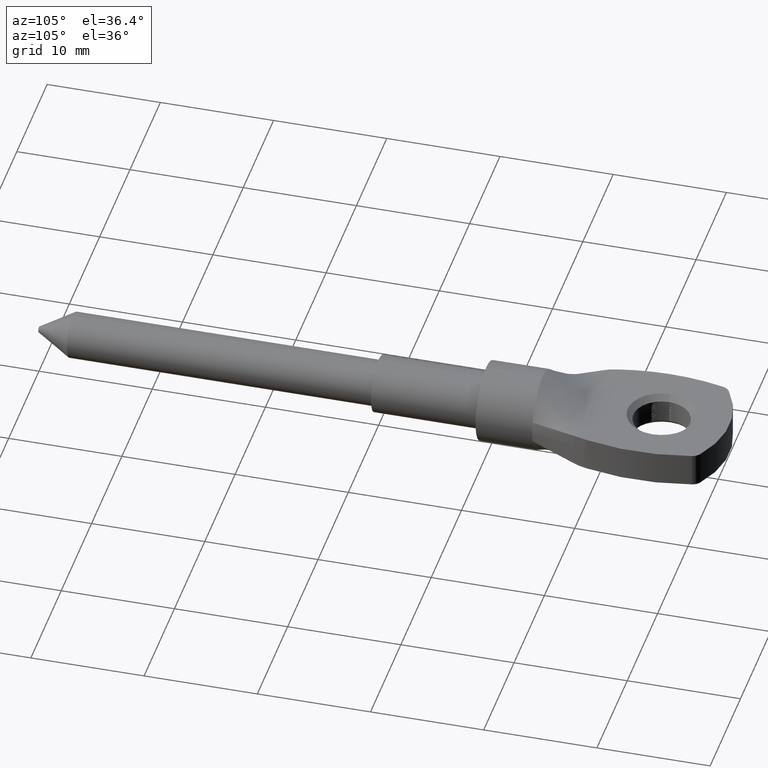
[diagram: clean part render]
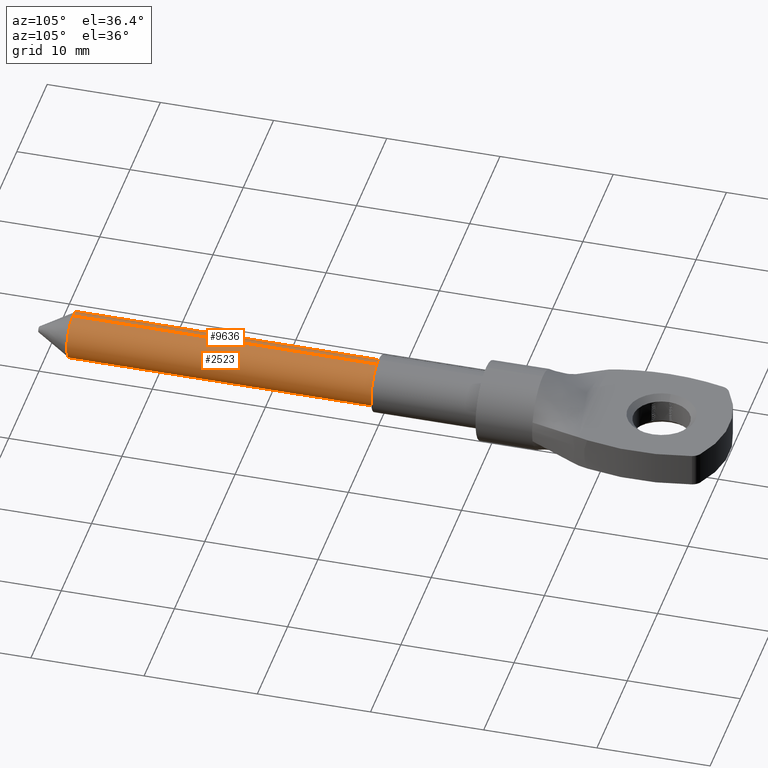
[diagram: same view with one multi-face feature highlighted, each face labeled with its STEP entity id]
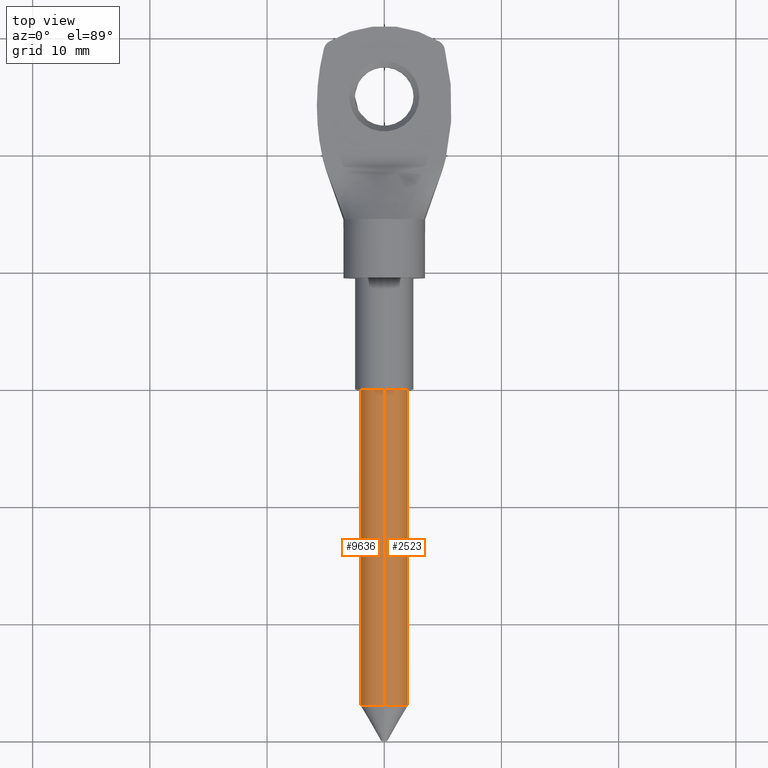
[diagram: same view with one multi-face feature highlighted, each face labeled with its STEP entity id]
A machine part, auxiliary view. The highlighted faces form ONE feature: a constant-radius fillet chain: 2 tangent blend faces with common blend radius 2 mm. The faces share edges in the B-rep.
A second angle (top view) of the same feature is appended — it is thin or edge-on in the first view.
Their STEP definitions:
[1] entity #2523 (Cylinder):
#611 = AXIS2_PLACEMENT_3D ( 'NONE', #10107, #1259, #11242 ) ;
#917 = CARTESIAN_POINT ( 'NONE',  ( 2.449293598294709900E-016, 0.0000000000000000000, 2.000000000000002700 ) ) ;
#1259 = DIRECTION ( 'NONE',  ( -0.0000000000000000000, -1.000000000000000000, -0.0000000000000000000 ) ) ;
#1558 = DIRECTION ( 'NONE',  ( -0.0000000000000000000, -1.000000000000000000, -0.0000000000000000000 ) ) ;
#1817 = DIRECTION ( 'NONE',  ( 0.0000000000000000000, 0.0000000000000000000, 1.000000000000000000 ) ) ;
#1860 = CARTESIAN_POINT ( 'NONE',  ( 0.0000000000000000000, 3.000000000000000900, -2.000000000000004400 ) ) ;
#2258 = EDGE_CURVE ( 'NONE', #9325, #12213, #5602, .T. ) ;
#2523 = ADVANCED_FACE ( 'NONE', ( #8211 ), #5097, .T. ) ;
#2527 = VECTOR ( 'NONE', #8395, 1000.000000000000000 ) ;
#2573 = ORIENTED_EDGE ( 'NONE', *, *, #5316, .F. ) ;
#2853 = EDGE_CURVE ( 'NONE', #12213, #11428, #8957, .T. ) ;
#4359 = ORIENTED_EDGE ( 'NONE', *, *, #2258, .T. ) ;
#4513 = EDGE_LOOP ( 'NONE', ( #4359, #14118, #2573, #7591 ) ) ;
#5097 = CYLINDRICAL_SURFACE ( 'NONE', #611, 2.000000000000002700 ) ;
#5316 = EDGE_CURVE ( 'NONE', #12563, #11428, #10677, .T. ) ;
#5602 = CIRCLE ( 'NONE', #11376, 2.000000000000002700 ) ;
#6030 = EDGE_CURVE ( 'NONE', #9325, #12563, #12445, .T. ) ;
#7591 = ORIENTED_EDGE ( 'NONE', *, *, #6030, .F. ) ;
#8211 = FACE_OUTER_BOUND ( 'NONE', #4513, .T. ) ;
#8395 = DIRECTION ( 'NONE',  ( -0.0000000000000000000, -1.000000000000000000, -0.0000000000000000000 ) ) ;
#8523 = DIRECTION ( 'NONE',  ( -0.0000000000000000000, -1.000000000000000000, -0.0000000000000000000 ) ) ;
#8957 = LINE ( 'NONE', #917, #13148 ) ;
#9116 = CARTESIAN_POINT ( 'NONE',  ( 0.0000000000000000000, 30.00000000000000000, -2.000000000000002700 ) ) ;
#9325 = VERTEX_POINT ( 'NONE', #9116 ) ;
#9624 = DIRECTION ( 'NONE',  ( -0.0000000000000000000, -1.000000000000000000, -0.0000000000000000000 ) ) ;
#10107 = CARTESIAN_POINT ( 'NONE',  ( 0.0000000000000000000, 0.0000000000000000000, 0.0000000000000000000 ) ) ;
#10420 = CARTESIAN_POINT ( 'NONE',  ( 2.449293598294711800E-016, 3.000000000000000900, 2.000000000000004400 ) ) ;
#10677 = CIRCLE ( 'NONE', #14176, 2.000000000000004400 ) ;
#11000 = CARTESIAN_POINT ( 'NONE',  ( 2.449293598294709900E-016, 30.00000000000000000, 2.000000000000002700 ) ) ;
#11242 = DIRECTION ( 'NONE',  ( 0.0000000000000000000, 0.0000000000000000000, -1.000000000000000000 ) ) ;
#11376 = AXIS2_PLACEMENT_3D ( 'NONE', #13968, #8523, #1817 ) ;
#11428 = VERTEX_POINT ( 'NONE', #10420 ) ;
#12213 = VERTEX_POINT ( 'NONE', #11000 ) ;
#12445 = LINE ( 'NONE', #13842, #2527 ) ;
#12563 = VERTEX_POINT ( 'NONE', #1860 ) ;
#12643 = CARTESIAN_POINT ( 'NONE',  ( 0.0000000000000000000, 3.000000000000000900, 0.0000000000000000000 ) ) ;
#12782 = DIRECTION ( 'NONE',  ( 0.0000000000000000000, 0.0000000000000000000, -1.000000000000000000 ) ) ;
#13148 = VECTOR ( 'NONE', #9624, 1000.000000000000000 ) ;
#13842 = CARTESIAN_POINT ( 'NONE',  ( 0.0000000000000000000, 0.0000000000000000000, -2.000000000000002700 ) ) ;
#13968 = CARTESIAN_POINT ( 'NONE',  ( 0.0000000000000000000, 30.00000000000000000, 0.0000000000000000000 ) ) ;
#14118 = ORIENTED_EDGE ( 'NONE', *, *, #2853, .T. ) ;
#14176 = AXIS2_PLACEMENT_3D ( 'NONE', #12643, #1558, #12782 ) ;
[2] entity #9636 (Cylinder):
#43 = CARTESIAN_POINT ( 'NONE',  ( 0.0000000000000000000, 3.000000000000000900, 0.0000000000000000000 ) ) ;
#686 = ORIENTED_EDGE ( 'NONE', *, *, #12735, .T. ) ;
#895 = CIRCLE ( 'NONE', #10957, 2.000000000000002700 ) ;
#917 = CARTESIAN_POINT ( 'NONE',  ( 2.449293598294709900E-016, 0.0000000000000000000, 2.000000000000002700 ) ) ;
#919 = ORIENTED_EDGE ( 'NONE', *, *, #5065, .F. ) ;
#929 = ORIENTED_EDGE ( 'NONE', *, *, #6030, .T. ) ;
#1641 = FACE_OUTER_BOUND ( 'NONE', #12166, .T. ) ;
#1860 = CARTESIAN_POINT ( 'NONE',  ( 0.0000000000000000000, 3.000000000000000900, -2.000000000000004400 ) ) ;
#2484 = AXIS2_PLACEMENT_3D ( 'NONE', #43, #12244, #3267 ) ;
#2527 = VECTOR ( 'NONE', #8395, 1000.000000000000000 ) ;
#2853 = EDGE_CURVE ( 'NONE', #12213, #11428, #8957, .T. ) ;
#3267 = DIRECTION ( 'NONE',  ( 0.0000000000000000000, 0.0000000000000000000, -1.000000000000000000 ) ) ;
#3397 = DIRECTION ( 'NONE',  ( 0.0000000000000000000, 0.0000000000000000000, 1.000000000000000000 ) ) ;
#3532 = AXIS2_PLACEMENT_3D ( 'NONE', #5527, #8483, #14019 ) ;
#4092 = ORIENTED_EDGE ( 'NONE', *, *, #2853, .F. ) ;
#5065 = EDGE_CURVE ( 'NONE', #11428, #12563, #9120, .T. ) ;
#5527 = CARTESIAN_POINT ( 'NONE',  ( 0.0000000000000000000, 0.0000000000000000000, 0.0000000000000000000 ) ) ;
#6030 = EDGE_CURVE ( 'NONE', #9325, #12563, #12445, .T. ) ;
#8395 = DIRECTION ( 'NONE',  ( -0.0000000000000000000, -1.000000000000000000, -0.0000000000000000000 ) ) ;
#8483 = DIRECTION ( 'NONE',  ( -0.0000000000000000000, -1.000000000000000000, -0.0000000000000000000 ) ) ;
#8957 = LINE ( 'NONE', #917, #13148 ) ;
#9116 = CARTESIAN_POINT ( 'NONE',  ( 0.0000000000000000000, 30.00000000000000000, -2.000000000000002700 ) ) ;
#9120 = CIRCLE ( 'NONE', #2484, 2.000000000000004400 ) ;
#9325 = VERTEX_POINT ( 'NONE', #9116 ) ;
#9624 = DIRECTION ( 'NONE',  ( -0.0000000000000000000, -1.000000000000000000, -0.0000000000000000000 ) ) ;
#9636 = ADVANCED_FACE ( 'NONE', ( #1641 ), #13936, .T. ) ;
#9997 = DIRECTION ( 'NONE',  ( -0.0000000000000000000, -1.000000000000000000, -0.0000000000000000000 ) ) ;
#10420 = CARTESIAN_POINT ( 'NONE',  ( 2.449293598294711800E-016, 3.000000000000000900, 2.000000000000004400 ) ) ;
#10957 = AXIS2_PLACEMENT_3D ( 'NONE', #11227, #9997, #3397 ) ;
#11000 = CARTESIAN_POINT ( 'NONE',  ( 2.449293598294709900E-016, 30.00000000000000000, 2.000000000000002700 ) ) ;
#11227 = CARTESIAN_POINT ( 'NONE',  ( 0.0000000000000000000, 30.00000000000000000, 0.0000000000000000000 ) ) ;
#11428 = VERTEX_POINT ( 'NONE', #10420 ) ;
#12166 = EDGE_LOOP ( 'NONE', ( #4092, #686, #929, #919 ) ) ;
#12213 = VERTEX_POINT ( 'NONE', #11000 ) ;
#12244 = DIRECTION ( 'NONE',  ( -0.0000000000000000000, -1.000000000000000000, -0.0000000000000000000 ) ) ;
#12445 = LINE ( 'NONE', #13842, #2527 ) ;
#12563 = VERTEX_POINT ( 'NONE', #1860 ) ;
#12735 = EDGE_CURVE ( 'NONE', #12213, #9325, #895, .T. ) ;
#13148 = VECTOR ( 'NONE', #9624, 1000.000000000000000 ) ;
#13842 = CARTESIAN_POINT ( 'NONE',  ( 0.0000000000000000000, 0.0000000000000000000, -2.000000000000002700 ) ) ;
#13936 = CYLINDRICAL_SURFACE ( 'NONE', #3532, 2.000000000000002700 ) ;
#14019 = DIRECTION ( 'NONE',  ( 0.0000000000000000000, 0.0000000000000000000, -1.000000000000000000 ) ) ;